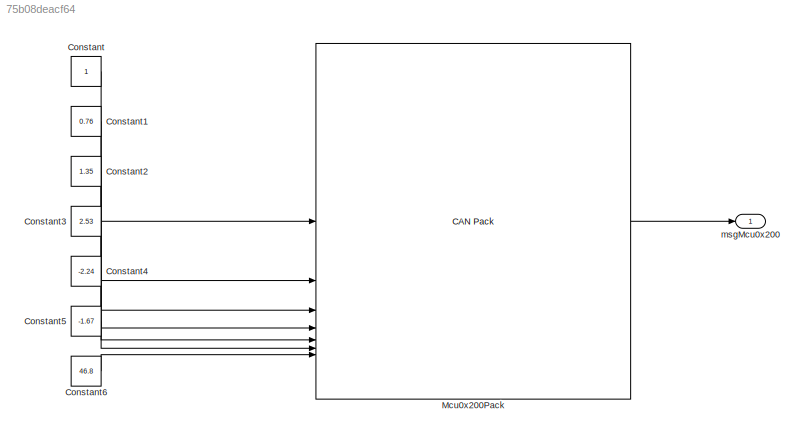
MODEL slx_75b08deacf64
KIND model
CONFIG AbsTol = auto
CONFIG EnableMultiTasking = on
CONFIG FixedStep = Ts_10ms
CONFIG MaxStep = auto
CONFIG MinStep = auto
CONFIG RelTol = 1e-3
CONFIG SampleTimeConstraint = Unconstrained
CONFIG SolverName = FixedStepDiscrete
CONFIG StartTime = 0.0
CONFIG StopTime = 10.0
BLOCK [Constant] Constant
  OutDataTypeStr = uint8
  SampleTime = Ts_10ms
BLOCK [Constant] Constant1
  OutDataTypeStr = single
  SampleTime = Ts_10ms
  Value = 0.76
BLOCK [Constant] Constant2
  OutDataTypeStr = single
  SampleTime = Ts_10ms
  Value = 1.35
BLOCK [Constant] Constant3
  OutDataTypeStr = single
  SampleTime = Ts_10ms
  Value = 2.53
BLOCK [Constant] Constant4
  OutDataTypeStr = single
  SampleTime = Ts_10ms
  Value = -2.24
BLOCK [Constant] Constant5
  OutDataTypeStr = single
  SampleTime = Ts_10ms
  Value = -1.67
BLOCK [Constant] Constant6
  OutDataTypeStr = single
  SampleTime = Ts_10ms
  Value = 46.8
BLOCK [Reference] Mcu0x200Pack  REF=canmsglib/CAN Pack
  LibrarySourceBlock = embeddedtargetslib/Host Communication/CAN Pack
  SourceBlock = canmsglib/CAN Pack
  SourceType = CAN Pack
BLOCK [Outport] msgMcu0x200
LINE Constant1:1 -> Mcu0x200Pack:2
LINE Constant2:1 -> Mcu0x200Pack:3
LINE Constant3:1 -> Mcu0x200Pack:4
LINE Constant4:1 -> Mcu0x200Pack:5
LINE Constant5:1 -> Mcu0x200Pack:6
LINE Constant6:1 -> Mcu0x200Pack:7
LINE Constant:1 -> Mcu0x200Pack:1
LINE Mcu0x200Pack:1 -> msgMcu0x200:1
